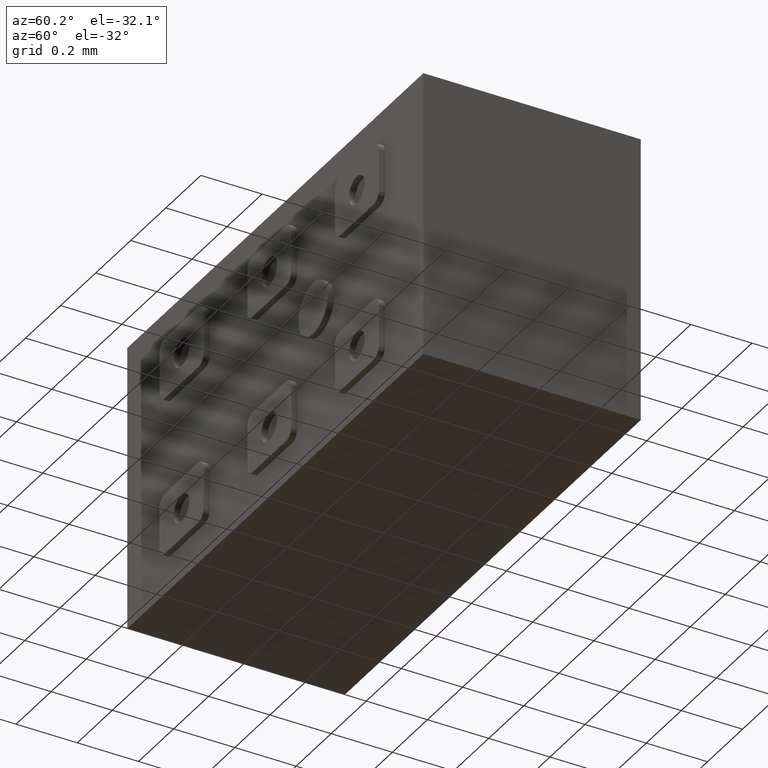
[diagram: clean part render]
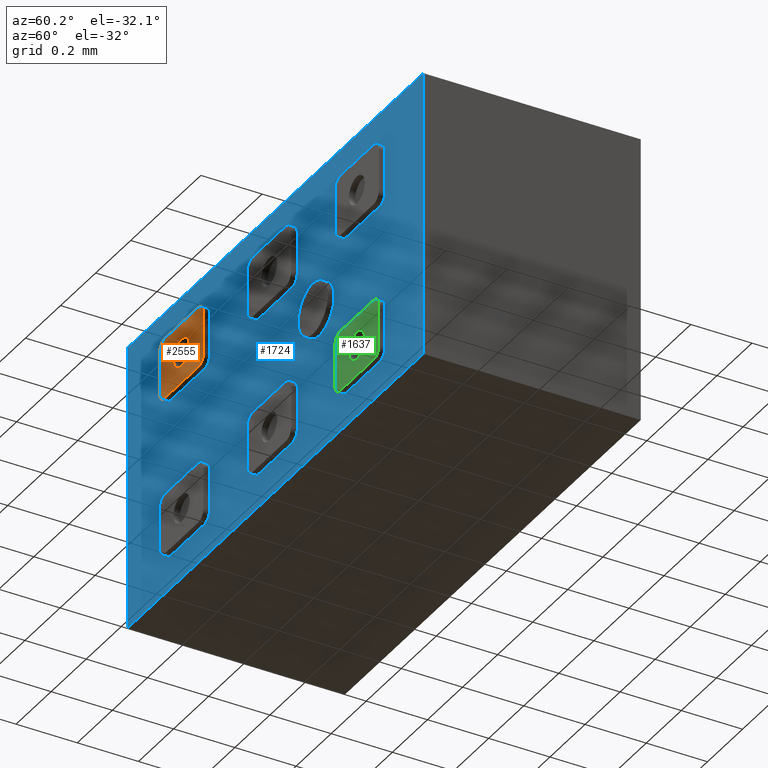
[diagram: same view with three faces highlighted in distinct colors, each labeled with its STEP entity id]
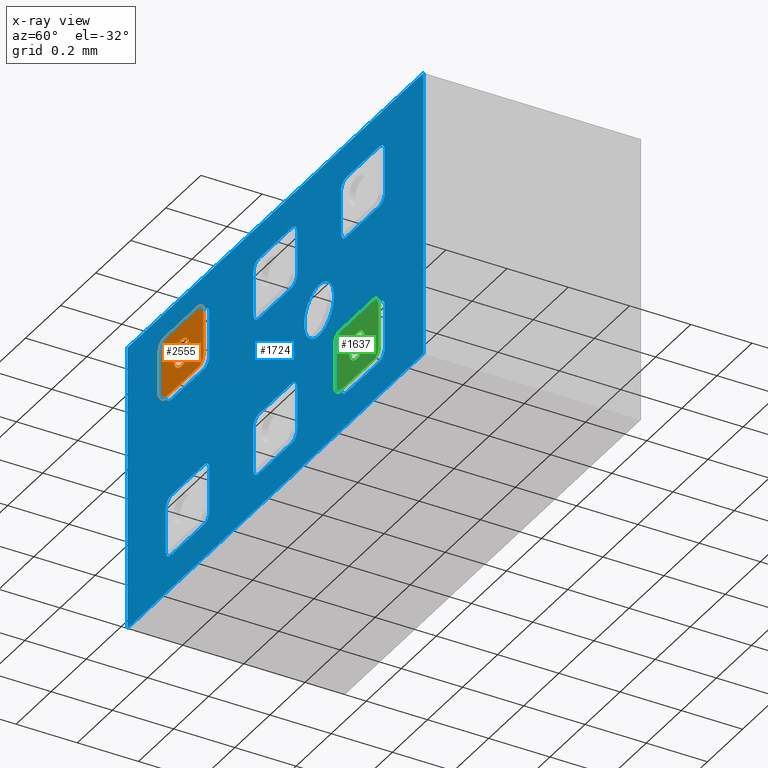
[diagram: x-ray of the same camera — body ghosted, the three highlighted faces saturated]
A machine part, auxiliary view with three faces highlighted in distinct colors.
The next image is the same camera in x-ray (body ghosted, the three faces saturated) — at least one of them is partly hidden behind the body in this view.
Their STEP definitions:

[orange] entity #2555 — the highlighted planar face has unit normal (0, 1, 0).
#21 = EDGE_CURVE ( 'NONE', #1549, #2287, #1374, .T. ) ;
#27 = CARTESIAN_POINT ( 'NONE',  ( -0.3749999999999998890, -0.3749999999999999445, 0.1900000000000070521 ) ) ;
#52 = CARTESIAN_POINT ( 'NONE',  ( -0.5950000000000000844, -0.3749999999999999445, 0.3300000000000071210 ) ) ;
#54 = CIRCLE ( 'NONE', #2496, 0.04500000000000001221 ) ;
#99 = FACE_OUTER_BOUND ( 'NONE', #1818, .T. ) ;
#100 = CIRCLE ( 'NONE', #2380, 0.04500000000000001221 ) ;
#121 = PLANE ( 'NONE',  #1906 ) ;
#122 = AXIS2_PLACEMENT_3D ( 'NONE', #52, #853, #627 ) ;
#163 = VECTOR ( 'NONE', #1788, 1000.000000000000000 ) ;
#180 = CIRCLE ( 'NONE', #2417, 0.02999999999999997113 ) ;
#267 = CARTESIAN_POINT ( 'NONE',  ( -0.6250000000000000000, -0.3749999999999999445, 0.3300000000000071210 ) ) ;
#304 = DIRECTION ( 'NONE',  ( 0.000000000000000000, 0.000000000000000000, -1.000000000000000000 ) ) ;
#321 = ORIENTED_EDGE ( 'NONE', *, *, #992, .F. ) ;
#375 = DIRECTION ( 'NONE',  ( 0.000000000000000000, 1.000000000000000000, 0.000000000000000000 ) ) ;
#390 = ORIENTED_EDGE ( 'NONE', *, *, #399, .F. ) ;
#399 = EDGE_CURVE ( 'NONE', #725, #1241, #832, .T. ) ;
#428 = LINE ( 'NONE', #827, #745 ) ;
#447 = ORIENTED_EDGE ( 'NONE', *, *, #1712, .T. ) ;
#478 = CARTESIAN_POINT ( 'NONE',  ( -0.3749999999999999445, -0.3749999999999999445, 0.1900000000000070521 ) ) ;
#481 = ORIENTED_EDGE ( 'NONE', *, *, #2243, .F. ) ;
#539 = DIRECTION ( 'NONE',  ( 0.000000000000000000, 0.000000000000000000, 1.000000000000000000 ) ) ;
#570 = EDGE_CURVE ( 'NONE', #1996, #1422, #2524, .T. ) ;
#627 = DIRECTION ( 'NONE',  ( 0.000000000000000000, 0.000000000000000000, 1.000000000000000000 ) ) ;
#725 = VERTEX_POINT ( 'NONE', #888 ) ;
#745 = VECTOR ( 'NONE', #2211, 1000.000000000000000 ) ;
#753 = CARTESIAN_POINT ( 'NONE',  ( -0.4049999999999999711, -0.3749999999999999445, 0.3300000000000071210 ) ) ;
#758 = EDGE_CURVE ( 'NONE', #1241, #1996, #869, .T. ) ;
#801 = DIRECTION ( 'NONE',  ( 1.000000000000000000, 0.000000000000000000, 0.000000000000000000 ) ) ;
#807 = DIRECTION ( 'NONE',  ( 0.000000000000000000, 1.000000000000000000, 0.000000000000000000 ) ) ;
#827 = CARTESIAN_POINT ( 'NONE',  ( -0.6250000000000000000, -0.3749999999999999445, 0.1900000000000070521 ) ) ;
#832 = CIRCLE ( 'NONE', #2105, 0.03000000000000002318 ) ;
#838 = VECTOR ( 'NONE', #1621, 1000.000000000000000 ) ;
#844 = CARTESIAN_POINT ( 'NONE',  ( -0.6250000000000000000, -0.3749999999999999445, 0.1900000000000070521 ) ) ;
#853 = DIRECTION ( 'NONE',  ( 0.000000000000000000, 1.000000000000000000, 0.000000000000000000 ) ) ;
#869 = LINE ( 'NONE', #27, #838 ) ;
#886 = AXIS2_PLACEMENT_3D ( 'NONE', #2186, #375, #1804 ) ;
#888 = CARTESIAN_POINT ( 'NONE',  ( -0.4049999999999999711, -0.3749999999999999445, 0.3600000000000071476 ) ) ;
#932 = ORIENTED_EDGE ( 'NONE', *, *, #758, .F. ) ;
#992 = EDGE_CURVE ( 'NONE', #2287, #725, #1246, .T. ) ;
#1032 = DIRECTION ( 'NONE',  ( 0.000000000000000000, 0.000000000000000000, 1.000000000000000000 ) ) ;
#1111 = CARTESIAN_POINT ( 'NONE',  ( -0.5950000000000000844, -0.3749999999999999445, 0.1900000000000070521 ) ) ;
#1139 = CARTESIAN_POINT ( 'NONE',  ( -0.3749999999999998890, -0.3749999999999999445, 0.3300000000000071210 ) ) ;
#1151 = VERTEX_POINT ( 'NONE', #1476 ) ;
#1201 = LINE ( 'NONE', #1938, #163 ) ;
#1228 = CARTESIAN_POINT ( 'NONE',  ( -0.5000000000000000000, -0.3749999999999999445, 0.2600000000000070033 ) ) ;
#1241 = VERTEX_POINT ( 'NONE', #1139 ) ;
#1246 = LINE ( 'NONE', #2007, #2233 ) ;
#1342 = CARTESIAN_POINT ( 'NONE',  ( -0.5000000000000000000, -0.3749999999999999445, 0.2600000000000070033 ) ) ;
#1374 = CIRCLE ( 'NONE', #122, 0.02999999999999997113 ) ;
#1392 = CARTESIAN_POINT ( 'NONE',  ( -0.5950000000000000844, -0.3749999999999999445, 0.3600000000000070921 ) ) ;
#1422 = VERTEX_POINT ( 'NONE', #1766 ) ;
#1476 = CARTESIAN_POINT ( 'NONE',  ( -0.5000000000000000000, -0.3749999999999999445, 0.2150000000000070466 ) ) ;
#1492 = DIRECTION ( 'NONE',  ( 0.000000000000000000, 1.000000000000000000, -0.000000000000000000 ) ) ;
#1523 = ORIENTED_EDGE ( 'NONE', *, *, #570, .F. ) ;
#1549 = VERTEX_POINT ( 'NONE', #267 ) ;
#1601 = ORIENTED_EDGE ( 'NONE', *, *, #1981, .F. ) ;
#1621 = DIRECTION ( 'NONE',  ( -0.000000000000000000, -0.000000000000000000, -1.000000000000000000 ) ) ;
#1649 = EDGE_LOOP ( 'NONE', ( #447, #2549 ) ) ;
#1690 = DIRECTION ( 'NONE',  ( 0.000000000000000000, -0.000000000000000000, 1.000000000000000000 ) ) ;
#1694 = VERTEX_POINT ( 'NONE', #2135 ) ;
#1712 = EDGE_CURVE ( 'NONE', #1832, #1151, #54, .T. ) ;
#1766 = CARTESIAN_POINT ( 'NONE',  ( -0.4049999999999999711, -0.3749999999999999445, 0.1600000000000070810 ) ) ;
#1788 = DIRECTION ( 'NONE',  ( -1.000000000000000000, -0.000000000000000000, -0.000000000000000000 ) ) ;
#1789 = EDGE_CURVE ( 'NONE', #1151, #1832, #100, .T. ) ;
#1804 = DIRECTION ( 'NONE',  ( 0.000000000000000000, 0.000000000000000000, 1.000000000000000000 ) ) ;
#1818 = EDGE_LOOP ( 'NONE', ( #1601, #481, #1523, #932, #390, #321, #2120, #1845 ) ) ;
#1832 = VERTEX_POINT ( 'NONE', #2013 ) ;
#1845 = ORIENTED_EDGE ( 'NONE', *, *, #2500, .F. ) ;
#1900 = FACE_BOUND ( 'NONE', #1649, .T. ) ;
#1906 = AXIS2_PLACEMENT_3D ( 'NONE', #1111, #2466, #1690 ) ;
#1938 = CARTESIAN_POINT ( 'NONE',  ( -0.5950000000000000844, -0.3749999999999999445, 0.1600000000000070810 ) ) ;
#1981 = EDGE_CURVE ( 'NONE', #1694, #2510, #180, .T. ) ;
#1996 = VERTEX_POINT ( 'NONE', #478 ) ;
#2007 = CARTESIAN_POINT ( 'NONE',  ( -0.5950000000000000844, -0.3749999999999999445, 0.3600000000000070921 ) ) ;
#2013 = CARTESIAN_POINT ( 'NONE',  ( -0.5000000000000000000, -0.3749999999999999445, 0.3050000000000070433 ) ) ;
#2105 = AXIS2_PLACEMENT_3D ( 'NONE', #753, #1492, #304 ) ;
#2120 = ORIENTED_EDGE ( 'NONE', *, *, #21, .F. ) ;
#2135 = CARTESIAN_POINT ( 'NONE',  ( -0.5950000000000000844, -0.3749999999999999445, 0.1600000000000070810 ) ) ;
#2186 = CARTESIAN_POINT ( 'NONE',  ( -0.4049999999999999711, -0.3749999999999999445, 0.1900000000000070521 ) ) ;
#2201 = DIRECTION ( 'NONE',  ( 0.000000000000000000, 0.000000000000000000, 1.000000000000000000 ) ) ;
#2211 = DIRECTION ( 'NONE',  ( 0.000000000000000000, 0.000000000000000000, 1.000000000000000000 ) ) ;
#2214 = CARTESIAN_POINT ( 'NONE',  ( -0.5950000000000000844, -0.3749999999999999445, 0.1900000000000070521 ) ) ;
#2233 = VECTOR ( 'NONE', #801, 1000.000000000000000 ) ;
#2243 = EDGE_CURVE ( 'NONE', #1422, #1694, #1201, .T. ) ;
#2287 = VERTEX_POINT ( 'NONE', #1392 ) ;
#2320 = DIRECTION ( 'NONE',  ( 0.000000000000000000, 1.000000000000000000, 0.000000000000000000 ) ) ;
#2380 = AXIS2_PLACEMENT_3D ( 'NONE', #1228, #807, #2201 ) ;
#2417 = AXIS2_PLACEMENT_3D ( 'NONE', #2214, #2430, #1032 ) ;
#2430 = DIRECTION ( 'NONE',  ( 0.000000000000000000, 1.000000000000000000, 0.000000000000000000 ) ) ;
#2466 = DIRECTION ( 'NONE',  ( 0.000000000000000000, 1.000000000000000000, 0.000000000000000000 ) ) ;
#2496 = AXIS2_PLACEMENT_3D ( 'NONE', #1342, #2320, #539 ) ;
#2500 = EDGE_CURVE ( 'NONE', #2510, #1549, #428, .T. ) ;
#2510 = VERTEX_POINT ( 'NONE', #844 ) ;
#2524 = CIRCLE ( 'NONE', #886, 0.03000000000000002318 ) ;
#2549 = ORIENTED_EDGE ( 'NONE', *, *, #1789, .T. ) ;
#2555 = ADVANCED_FACE ( 'NONE', ( #1900, #99 ), #121, .F. ) ;

[blue] entity #1724 — the highlighted planar face has unit normal (0, 1, 0).
#4 = CARTESIAN_POINT ( 'NONE',  ( 0.8445000000000000284, -0.3549999999999999822, 0.4694999999999998064 ) ) ;
#5 = DIRECTION ( 'NONE',  ( 0.000000000000000000, 0.000000000000000000, 1.000000000000000000 ) ) ;
#7 = ORIENTED_EDGE ( 'NONE', *, *, #424, .T. ) ;
#8 = VERTEX_POINT ( 'NONE', #2229 ) ;
#16 = LINE ( 'NONE', #1156, #381 ) ;
#18 = ORIENTED_EDGE ( 'NONE', *, *, #2028, .T. ) ;
#20 = CARTESIAN_POINT ( 'NONE',  ( -0.4049999999999999711, -0.3549999999999999822, 0.3600000000000071476 ) ) ;
#25 = ORIENTED_EDGE ( 'NONE', *, *, #1070, .T. ) ;
#26 = LINE ( 'NONE', #476, #1414 ) ;
#33 = CIRCLE ( 'NONE', #1250, 0.03000000000000002318 ) ;
#39 = CIRCLE ( 'NONE', #1211, 0.03000000000000002318 ) ;
#42 = CARTESIAN_POINT ( 'NONE',  ( -0.5950000000000000844, -0.3549999999999999822, -0.1899999999999930078 ) ) ;
#44 = DIRECTION ( 'NONE',  ( 0.000000000000000000, 0.000000000000000000, 1.000000000000000000 ) ) ;
#56 = AXIS2_PLACEMENT_3D ( 'NONE', #1300, #697, #299 ) ;
#64 = ORIENTED_EDGE ( 'NONE', *, *, #2283, .T. ) ;
#68 = CARTESIAN_POINT ( 'NONE',  ( 0.09500000000000002887, -0.3549999999999999822, -0.1599999999999964506 ) ) ;
#89 = LINE ( 'NONE', #1075, #2210 ) ;
#92 = DIRECTION ( 'NONE',  ( 0.000000000000000000, 0.000000000000000000, 1.000000000000000000 ) ) ;
#94 = DIRECTION ( 'NONE',  ( 0.000000000000000000, 0.000000000000000000, 1.000000000000000000 ) ) ;
#95 = CARTESIAN_POINT ( 'NONE',  ( 0.1250000000000001110, -0.3549999999999999822, 0.3300000000000035683 ) ) ;
#96 = EDGE_CURVE ( 'NONE', #851, #1087, #1283, .T. ) ;
#102 = CIRCLE ( 'NONE', #56, 0.03000000000000002318 ) ;
#104 = EDGE_LOOP ( 'NONE', ( #1777, #1050, #18, #1155, #813, #2556, #1387, #1196 ) ) ;
#117 = EDGE_CURVE ( 'NONE', #1760, #2366, #2256, .T. ) ;
#118 = CARTESIAN_POINT ( 'NONE',  ( 0.09500000000000002887, -0.3549999999999999822, -0.3599999999999964895 ) ) ;
#127 = EDGE_CURVE ( 'NONE', #1461, #1200, #484, .T. ) ;
#129 = VECTOR ( 'NONE', #2062, 1000.000000000000000 ) ;
#130 = VERTEX_POINT ( 'NONE', #118 ) ;
#135 = ORIENTED_EDGE ( 'NONE', *, *, #1029, .T. ) ;
#138 = CARTESIAN_POINT ( 'NONE',  ( -0.1250000000000000000, -0.3549999999999999822, 0.3300000000000035683 ) ) ;
#142 = VERTEX_POINT ( 'NONE', #1654 ) ;
#145 = CARTESIAN_POINT ( 'NONE',  ( -0.5950000000000000844, -0.3549999999999999822, -0.1599999999999930367 ) ) ;
#147 = VERTEX_POINT ( 'NONE', #1307 ) ;
#148 = CARTESIAN_POINT ( 'NONE',  ( -0.5950000000000000844, -0.3549999999999999822, 0.3300000000000071210 ) ) ;
#150 = EDGE_CURVE ( 'NONE', #1301, #1760, #1780, .T. ) ;
#165 = DIRECTION ( 'NONE',  ( 0.000000000000000000, -0.000000000000000000, 1.000000000000000000 ) ) ;
#167 = CARTESIAN_POINT ( 'NONE',  ( -0.09500000000000002887, -0.3549999999999999822, 0.1900000000000035272 ) ) ;
#174 = VERTEX_POINT ( 'NONE', #282 ) ;
#176 = VERTEX_POINT ( 'NONE', #1081 ) ;
#195 = CARTESIAN_POINT ( 'NONE',  ( -0.5950000000000000844, -0.3549999999999999822, -0.3599999999999930478 ) ) ;
#196 = CARTESIAN_POINT ( 'NONE',  ( -0.1250000000000000000, -0.3549999999999999822, 0.1900000000000035272 ) ) ;
#203 = LINE ( 'NONE', #1008, #1259 ) ;
#208 = EDGE_CURVE ( 'NONE', #542, #2104, #2473, .T. ) ;
#215 = AXIS2_PLACEMENT_3D ( 'NONE', #1251, #285, #1866 ) ;
#222 = EDGE_LOOP ( 'NONE', ( #300, #630, #1821, #1115, #1399, #461, #930, #815 ) ) ;
#224 = DIRECTION ( 'NONE',  ( 0.000000000000000000, 0.000000000000000000, -1.000000000000000000 ) ) ;
#241 = DIRECTION ( 'NONE',  ( -1.000000000000000000, -0.000000000000000000, -0.000000000000000000 ) ) ;
#248 = CARTESIAN_POINT ( 'NONE',  ( -0.6250000000000000000, -0.3549999999999999822, -0.3299999999999930766 ) ) ;
#251 = VECTOR ( 'NONE', #241, 1000.000000000000000 ) ;
#257 = EDGE_CURVE ( 'NONE', #1268, #851, #1293, .T. ) ;
#258 = CIRCLE ( 'NONE', #1704, 0.03000000000000002318 ) ;
#259 = VERTEX_POINT ( 'NONE', #1445 ) ;
#260 = EDGE_CURVE ( 'NONE', #147, #1268, #1640, .T. ) ;
#263 = DIRECTION ( 'NONE',  ( 0.000000000000000000, 1.000000000000000000, 0.000000000000000000 ) ) ;
#272 = VERTEX_POINT ( 'NONE', #1256 ) ;
#282 = CARTESIAN_POINT ( 'NONE',  ( 0.2500000000000000000, -0.3549999999999999822, -0.08500000000000003386 ) ) ;
#284 = DIRECTION ( 'NONE',  ( 1.000000000000000000, 0.000000000000000000, 0.000000000000000000 ) ) ;
#285 = DIRECTION ( 'NONE',  ( 0.000000000000000000, 1.000000000000000000, 0.000000000000000000 ) ) ;
#299 = DIRECTION ( 'NONE',  ( 0.000000000000000000, 0.000000000000000000, -1.000000000000000000 ) ) ;
#300 = ORIENTED_EDGE ( 'NONE', *, *, #1147, .T. ) ;
#306 = DIRECTION ( 'NONE',  ( 1.000000000000000000, 0.000000000000000000, 0.000000000000000000 ) ) ;
#309 = AXIS2_PLACEMENT_3D ( 'NONE', #778, #1571, #1855 ) ;
#316 = FACE_BOUND ( 'NONE', #2493, .T. ) ;
#329 = DIRECTION ( 'NONE',  ( -1.000000000000000000, -0.000000000000000000, -0.000000000000000000 ) ) ;
#343 = VERTEX_POINT ( 'NONE', #637 ) ;
#346 = DIRECTION ( 'NONE',  ( 1.000000000000000000, 0.000000000000000000, 0.000000000000000000 ) ) ;
#358 = VERTEX_POINT ( 'NONE', #2027 ) ;
#366 = VERTEX_POINT ( 'NONE', #916 ) ;
#378 = ORIENTED_EDGE ( 'NONE', *, *, #1369, .T. ) ;
#379 = DIRECTION ( 'NONE',  ( -1.000000000000000000, -0.000000000000000000, -0.000000000000000000 ) ) ;
#381 = VECTOR ( 'NONE', #1980, 1000.000000000000000 ) ;
#391 = VERTEX_POINT ( 'NONE', #138 ) ;
#394 = DIRECTION ( 'NONE',  ( 0.000000000000000000, 0.000000000000000000, 1.000000000000000000 ) ) ;
#402 = CARTESIAN_POINT ( 'NONE',  ( -0.4049999999999999711, -0.3549999999999999822, -0.3599999999999930478 ) ) ;
#408 = DIRECTION ( 'NONE',  ( 0.000000000000000000, 1.000000000000000000, -0.000000000000000000 ) ) ;
#411 = VERTEX_POINT ( 'NONE', #1341 ) ;
#424 = EDGE_CURVE ( 'NONE', #2158, #2178, #2121, .T. ) ;
#429 = LINE ( 'NONE', #1277, #129 ) ;
#430 = DIRECTION ( 'NONE',  ( -0.000000000000000000, -0.000000000000000000, -1.000000000000000000 ) ) ;
#431 = EDGE_CURVE ( 'NONE', #1200, #2158, #2274, .T. ) ;
#433 = LINE ( 'NONE', #1765, #1757 ) ;
#437 = DIRECTION ( 'NONE',  ( 0.000000000000000000, 0.000000000000000000, 1.000000000000000000 ) ) ;
#440 = LINE ( 'NONE', #2022, #251 ) ;
#461 = ORIENTED_EDGE ( 'NONE', *, *, #2078, .T. ) ;
#475 = LINE ( 'NONE', #855, #1161 ) ;
#476 = CARTESIAN_POINT ( 'NONE',  ( 0.4049999999999999711, -0.3549999999999999822, -0.1599999999999999756 ) ) ;
#484 = LINE ( 'NONE', #1680, #2033 ) ;
#488 = CARTESIAN_POINT ( 'NONE',  ( -0.3749999999999998890, -0.3549999999999999822, -0.3299999999999930766 ) ) ;
#494 = DIRECTION ( 'NONE',  ( -1.000000000000000000, -0.000000000000000000, -0.000000000000000000 ) ) ;
#504 = DIRECTION ( 'NONE',  ( 0.000000000000000000, 0.000000000000000000, 1.000000000000000000 ) ) ;
#506 = DIRECTION ( 'NONE',  ( 0.000000000000000000, 0.000000000000000000, 1.000000000000000000 ) ) ;
#513 = DIRECTION ( 'NONE',  ( 0.000000000000000000, 1.000000000000000000, 0.000000000000000000 ) ) ;
#520 = VERTEX_POINT ( 'NONE', #991 ) ;
#528 = VERTEX_POINT ( 'NONE', #1019 ) ;
#529 = DIRECTION ( 'NONE',  ( 0.000000000000000000, 0.000000000000000000, 1.000000000000000000 ) ) ;
#530 = EDGE_CURVE ( 'NONE', #259, #1279, #1174, .T. ) ;
#533 = AXIS2_PLACEMENT_3D ( 'NONE', #887, #1670, #2454 ) ;
#540 = AXIS2_PLACEMENT_3D ( 'NONE', #1556, #2134, #1761 ) ;
#542 = VERTEX_POINT ( 'NONE', #1954 ) ;
#543 = CARTESIAN_POINT ( 'NONE',  ( -0.1250000000000000000, -0.3549999999999999822, -0.1899999999999964773 ) ) ;
#545 = CARTESIAN_POINT ( 'NONE',  ( -0.09500000000000002887, -0.3549999999999999822, -0.1599999999999965061 ) ) ;
#547 = EDGE_CURVE ( 'NONE', #1559, #1928, #2239, .T. ) ;
#548 = EDGE_LOOP ( 'NONE', ( #1764, #994, #2053, #2035, #1675, #135, #2086, #831 ) ) ;
#550 = CARTESIAN_POINT ( 'NONE',  ( -0.09500000000000002887, -0.3549999999999999822, 0.3600000000000035394 ) ) ;
#552 = PLANE ( 'NONE',  #935 ) ;
#556 = CARTESIAN_POINT ( 'NONE',  ( 0.4049999999999999711, -0.3549999999999999822, 0.3600000000000000977 ) ) ;
#574 = DIRECTION ( 'NONE',  ( 0.000000000000000000, 0.000000000000000000, 1.000000000000000000 ) ) ;
#577 = AXIS2_PLACEMENT_3D ( 'NONE', #42, #1225, #1840 ) ;
#591 = LINE ( 'NONE', #1213, #748 ) ;
#596 = DIRECTION ( 'NONE',  ( 0.000000000000000000, 0.000000000000000000, 1.000000000000000000 ) ) ;
#602 = CARTESIAN_POINT ( 'NONE',  ( -0.5950000000000000844, -0.3549999999999999822, 0.1900000000000070521 ) ) ;
#605 = VERTEX_POINT ( 'NONE', #2355 ) ;
#617 = CARTESIAN_POINT ( 'NONE',  ( 0.4049999999999999711, -0.3549999999999999822, -0.1899999999999999467 ) ) ;
#618 = LINE ( 'NONE', #1558, #974 ) ;
#622 = VECTOR ( 'NONE', #1813, 1000.000000000000000 ) ;
#625 = CARTESIAN_POINT ( 'NONE',  ( -0.6250000000000000000, -0.3549999999999999822, 0.1900000000000070521 ) ) ;
#626 = EDGE_CURVE ( 'NONE', #1133, #2459, #16, .T. ) ;
#630 = ORIENTED_EDGE ( 'NONE', *, *, #2167, .T. ) ;
#632 = EDGE_CURVE ( 'NONE', #1472, #391, #203, .T. ) ;
#634 = CARTESIAN_POINT ( 'NONE',  ( -0.3749999999999998890, -0.3549999999999999822, -0.1899999999999930078 ) ) ;
#637 = CARTESIAN_POINT ( 'NONE',  ( 0.6250000000000001110, -0.3549999999999999822, -0.1899999999999999467 ) ) ;
#643 = AXIS2_PLACEMENT_3D ( 'NONE', #2339, #2455, #529 ) ;
#652 = EDGE_CURVE ( 'NONE', #411, #1544, #755, .T. ) ;
#661 = ORIENTED_EDGE ( 'NONE', *, *, #150, .T. ) ;
#665 = CIRCLE ( 'NONE', #957, 0.08500000000000003386 ) ;
#669 = DIRECTION ( 'NONE',  ( 0.000000000000000000, 0.000000000000000000, 1.000000000000000000 ) ) ;
#670 = CARTESIAN_POINT ( 'NONE',  ( 0.4049999999999999711, -0.3549999999999999822, 0.3600000000000000977 ) ) ;
#675 = CARTESIAN_POINT ( 'NONE',  ( 0.6250000000000001110, -0.3549999999999999822, -0.3300000000000000155 ) ) ;
#696 = EDGE_CURVE ( 'NONE', #752, #2119, #258, .T. ) ;
#697 = DIRECTION ( 'NONE',  ( 0.000000000000000000, 1.000000000000000000, -0.000000000000000000 ) ) ;
#701 = CARTESIAN_POINT ( 'NONE',  ( 0.4049999999999999711, -0.3549999999999999822, 0.1600000000000000866 ) ) ;
#704 = VECTOR ( 'NONE', #2285, 1000.000000000000000 ) ;
#707 = CIRCLE ( 'NONE', #882, 0.03000000000000002318 ) ;
#710 = VECTOR ( 'NONE', #1347, 1000.000000000000000 ) ;
#712 = EDGE_CURVE ( 'NONE', #358, #142, #429, .T. ) ;
#715 = CARTESIAN_POINT ( 'NONE',  ( -0.4049999999999999711, -0.3549999999999999822, 0.1600000000000070810 ) ) ;
#726 = ORIENTED_EDGE ( 'NONE', *, *, #1851, .T. ) ;
#729 = EDGE_CURVE ( 'NONE', #605, #1339, #1337, .T. ) ;
#736 = ORIENTED_EDGE ( 'NONE', *, *, #208, .F. ) ;
#746 = VECTOR ( 'NONE', #494, 1000.000000000000000 ) ;
#747 = AXIS2_PLACEMENT_3D ( 'NONE', #2452, #910, #1689 ) ;
#748 = VECTOR ( 'NONE', #2142, 1000.000000000000000 ) ;
#752 = VERTEX_POINT ( 'NONE', #2048 ) ;
#754 = FACE_BOUND ( 'NONE', #802, .T. ) ;
#755 = CIRCLE ( 'NONE', #215, 0.02999999999999997113 ) ;
#760 = LINE ( 'NONE', #488, #710 ) ;
#769 = DIRECTION ( 'NONE',  ( 0.000000000000000000, 0.000000000000000000, 1.000000000000000000 ) ) ;
#775 = CARTESIAN_POINT ( 'NONE',  ( 0.4049999999999999711, -0.3549999999999999822, 0.1900000000000000577 ) ) ;
#778 = CARTESIAN_POINT ( 'NONE',  ( 0.4049999999999999711, -0.3549999999999999822, 0.3300000000000001266 ) ) ;
#785 = DIRECTION ( 'NONE',  ( 0.000000000000000000, 1.000000000000000000, 0.000000000000000000 ) ) ;
#790 = CARTESIAN_POINT ( 'NONE',  ( 0.1250000000000000555, -0.3549999999999999822, -0.3299999999999965183 ) ) ;
#797 = CARTESIAN_POINT ( 'NONE',  ( -0.8445000000000000284, -0.3549999999999999822, 0.4695000000000000284 ) ) ;
#802 = EDGE_LOOP ( 'NONE', ( #1076, #2198, #25, #808, #1721, #1343, #1630, #2374 ) ) ;
#803 = EDGE_CURVE ( 'NONE', #1928, #821, #760, .T. ) ;
#808 = ORIENTED_EDGE ( 'NONE', *, *, #729, .T. ) ;
#813 = ORIENTED_EDGE ( 'NONE', *, *, #885, .T. ) ;
#814 = EDGE_CURVE ( 'NONE', #391, #259, #2015, .T. ) ;
#815 = ORIENTED_EDGE ( 'NONE', *, *, #1170, .T. ) ;
#816 = DIRECTION ( 'NONE',  ( 0.000000000000000000, 0.000000000000000000, 1.000000000000000000 ) ) ;
#821 = VERTEX_POINT ( 'NONE', #2156 ) ;
#831 = ORIENTED_EDGE ( 'NONE', *, *, #1386, .T. ) ;
#834 = CIRCLE ( 'NONE', #1826, 0.02999999999999997113 ) ;
#846 = CARTESIAN_POINT ( 'NONE',  ( -0.09500000000000002887, -0.3549999999999999822, -0.3299999999999965183 ) ) ;
#851 = VERTEX_POINT ( 'NONE', #545 ) ;
#855 = CARTESIAN_POINT ( 'NONE',  ( -0.09500000000000002887, -0.3549999999999999822, 0.1600000000000035560 ) ) ;
#856 = CIRCLE ( 'NONE', #1963, 0.02999999999999997113 ) ;
#880 = CIRCLE ( 'NONE', #533, 0.08500000000000003386 ) ;
#882 = AXIS2_PLACEMENT_3D ( 'NONE', #2379, #1812, #437 ) ;
#885 = EDGE_CURVE ( 'NONE', #2548, #1559, #1318, .T. ) ;
#887 = CARTESIAN_POINT ( 'NONE',  ( 0.2500000000000000000, -0.3549999999999999822, 0.000000000000000000 ) ) ;
#893 = VERTEX_POINT ( 'NONE', #556 ) ;
#906 = EDGE_LOOP ( 'NONE', ( #1288, #1216, #2141, #1159, #7, #378, #2309, #661 ) ) ;
#910 = DIRECTION ( 'NONE',  ( 0.000000000000000000, 1.000000000000000000, 0.000000000000000000 ) ) ;
#916 = CARTESIAN_POINT ( 'NONE',  ( 0.3750000000000000000, -0.3549999999999999822, -0.3300000000000000155 ) ) ;
#921 = CIRCLE ( 'NONE', #2565, 0.03000000000000002318 ) ;
#930 = ORIENTED_EDGE ( 'NONE', *, *, #626, .T. ) ;
#931 = CARTESIAN_POINT ( 'NONE',  ( -0.6250000000000000000, -0.3549999999999999822, 0.3300000000000071210 ) ) ;
#935 = AXIS2_PLACEMENT_3D ( 'NONE', #1354, #513, #165 ) ;
#936 = VECTOR ( 'NONE', #379, 1000.000000000000000 ) ;
#957 = AXIS2_PLACEMENT_3D ( 'NONE', #1985, #2413, #394 ) ;
#962 = DIRECTION ( 'NONE',  ( 0.000000000000000000, 1.000000000000000000, 0.000000000000000000 ) ) ;
#963 = EDGE_CURVE ( 'NONE', #2366, #1461, #1995, .T. ) ;
#969 = CARTESIAN_POINT ( 'NONE',  ( 0.6250000000000001110, -0.3549999999999999822, 0.3300000000000001266 ) ) ;
#973 = VERTEX_POINT ( 'NONE', #2568 ) ;
#974 = VECTOR ( 'NONE', #430, 1000.000000000000000 ) ;
#983 = CARTESIAN_POINT ( 'NONE',  ( -0.5950000000000000844, -0.3549999999999999822, 0.3600000000000070921 ) ) ;
#985 = EDGE_LOOP ( 'NONE', ( #736, #1383, #2445, #1573 ) ) ;
#991 = CARTESIAN_POINT ( 'NONE',  ( -0.09500000000000002887, -0.3549999999999999822, 0.1600000000000035560 ) ) ;
#994 = ORIENTED_EDGE ( 'NONE', *, *, #1993, .T. ) ;
#1003 = CIRCLE ( 'NONE', #2401, 0.03000000000000002318 ) ;
#1006 = LINE ( 'NONE', #4, #2154 ) ;
#1008 = CARTESIAN_POINT ( 'NONE',  ( -0.1250000000000000000, -0.3549999999999999822, 0.1900000000000035272 ) ) ;
#1011 = VERTEX_POINT ( 'NONE', #1197 ) ;
#1019 = CARTESIAN_POINT ( 'NONE',  ( -0.09500000000000002887, -0.3549999999999999822, -0.3599999999999964895 ) ) ;
#1020 = CARTESIAN_POINT ( 'NONE',  ( 0.5950000000000000844, -0.3549999999999999822, -0.3599999999999999867 ) ) ;
#1027 = VERTEX_POINT ( 'NONE', #1591 ) ;
#1028 = DIRECTION ( 'NONE',  ( 0.000000000000000000, 0.000000000000000000, -1.000000000000000000 ) ) ;
#1029 = EDGE_CURVE ( 'NONE', #1087, #1150, #921, .T. ) ;
#1030 = CARTESIAN_POINT ( 'NONE',  ( 0.8445000000000000284, -0.3549999999999999822, -0.4695000000000002505 ) ) ;
#1031 = CARTESIAN_POINT ( 'NONE',  ( 0.5950000000000000844, -0.3549999999999999822, 0.3300000000000001266 ) ) ;
#1035 = EDGE_CURVE ( 'NONE', #2016, #1817, #707, .T. ) ;
#1037 = ORIENTED_EDGE ( 'NONE', *, *, #2203, .T. ) ;
#1050 = ORIENTED_EDGE ( 'NONE', *, *, #652, .T. ) ;
#1070 = EDGE_CURVE ( 'NONE', #366, #605, #1208, .T. ) ;
#1075 = CARTESIAN_POINT ( 'NONE',  ( -0.6250000000000000000, -0.3549999999999999822, -0.3299999999999930766 ) ) ;
#1076 = ORIENTED_EDGE ( 'NONE', *, *, #2290, .T. ) ;
#1081 = CARTESIAN_POINT ( 'NONE',  ( 0.2500000000000000000, -0.3549999999999999822, 0.08500000000000003386 ) ) ;
#1087 = VERTEX_POINT ( 'NONE', #68 ) ;
#1089 = VECTOR ( 'NONE', #329, 1000.000000000000000 ) ;
#1090 = DIRECTION ( 'NONE',  ( 0.000000000000000000, 0.000000000000000000, 1.000000000000000000 ) ) ;
#1092 = CARTESIAN_POINT ( 'NONE',  ( -0.4049999999999999711, -0.3549999999999999822, -0.1599999999999929812 ) ) ;
#1115 = ORIENTED_EDGE ( 'NONE', *, *, #814, .T. ) ;
#1119 = CARTESIAN_POINT ( 'NONE',  ( -0.8445000000000000284, -0.3549999999999999822, 0.4695000000000000284 ) ) ;
#1127 = EDGE_CURVE ( 'NONE', #1402, #973, #2479, .T. ) ;
#1128 = ORIENTED_EDGE ( 'NONE', *, *, #2475, .F. ) ;
#1133 = VERTEX_POINT ( 'NONE', #95 ) ;
#1144 = ORIENTED_EDGE ( 'NONE', *, *, #1901, .T. ) ;
#1147 = EDGE_CURVE ( 'NONE', #2458, #520, #475, .T. ) ;
#1149 = CARTESIAN_POINT ( 'NONE',  ( -0.3749999999999998890, -0.3549999999999999822, 0.1900000000000070521 ) ) ;
#1150 = VERTEX_POINT ( 'NONE', #1308 ) ;
#1155 = ORIENTED_EDGE ( 'NONE', *, *, #2365, .T. ) ;
#1156 = CARTESIAN_POINT ( 'NONE',  ( 0.1250000000000001110, -0.3549999999999999822, 0.1900000000000035272 ) ) ;
#1157 = FACE_BOUND ( 'NONE', #222, .T. ) ;
#1159 = ORIENTED_EDGE ( 'NONE', *, *, #431, .T. ) ;
#1161 = VECTOR ( 'NONE', #1274, 1000.000000000000000 ) ;
#1170 = EDGE_CURVE ( 'NONE', #2459, #2458, #1210, .T. ) ;
#1174 = LINE ( 'NONE', #550, #1221 ) ;
#1180 = EDGE_CURVE ( 'NONE', #893, #752, #2045, .T. ) ;
#1194 = DIRECTION ( 'NONE',  ( 0.000000000000000000, 0.000000000000000000, -1.000000000000000000 ) ) ;
#1196 = ORIENTED_EDGE ( 'NONE', *, *, #2324, .T. ) ;
#1197 = CARTESIAN_POINT ( 'NONE',  ( -0.3749999999999998890, -0.3549999999999999822, 0.3300000000000071210 ) ) ;
#1200 = VERTEX_POINT ( 'NONE', #931 ) ;
#1208 = LINE ( 'NONE', #1991, #2363 ) ;
#1210 = CIRCLE ( 'NONE', #747, 0.03000000000000002318 ) ;
#1211 = AXIS2_PLACEMENT_3D ( 'NONE', #2529, #1979, #574 ) ;
#1213 = CARTESIAN_POINT ( 'NONE',  ( 0.4049999999999999711, -0.3549999999999999822, -0.3599999999999999867 ) ) ;
#1216 = ORIENTED_EDGE ( 'NONE', *, *, #963, .T. ) ;
#1217 = EDGE_CURVE ( 'NONE', #343, #2016, #1714, .T. ) ;
#1221 = VECTOR ( 'NONE', #1405, 1000.000000000000000 ) ;
#1225 = DIRECTION ( 'NONE',  ( 0.000000000000000000, 1.000000000000000000, 0.000000000000000000 ) ) ;
#1239 = DIRECTION ( 'NONE',  ( 0.000000000000000000, 1.000000000000000000, 0.000000000000000000 ) ) ;
#1250 = AXIS2_PLACEMENT_3D ( 'NONE', #1625, #1368, #1194 ) ;
#1251 = CARTESIAN_POINT ( 'NONE',  ( -0.5950000000000000844, -0.3549999999999999822, -0.3299999999999930766 ) ) ;
#1256 = CARTESIAN_POINT ( 'NONE',  ( 0.3750000000000000000, -0.3549999999999999822, 0.1900000000000000577 ) ) ;
#1259 = VECTOR ( 'NONE', #5, 1000.000000000000000 ) ;
#1268 = VERTEX_POINT ( 'NONE', #543 ) ;
#1271 = VECTOR ( 'NONE', #1762, 1000.000000000000000 ) ;
#1274 = DIRECTION ( 'NONE',  ( -1.000000000000000000, -0.000000000000000000, -0.000000000000000000 ) ) ;
#1277 = CARTESIAN_POINT ( 'NONE',  ( 0.8445000000000000284, -0.3549999999999999822, 0.4694999999999998064 ) ) ;
#1279 = VERTEX_POINT ( 'NONE', #2537 ) ;
#1283 = LINE ( 'NONE', #2057, #1415 ) ;
#1288 = ORIENTED_EDGE ( 'NONE', *, *, #117, .T. ) ;
#1293 = CIRCLE ( 'NONE', #1531, 0.02999999999999997113 ) ;
#1296 = EDGE_CURVE ( 'NONE', #1011, #1301, #1933, .T. ) ;
#1300 = CARTESIAN_POINT ( 'NONE',  ( 0.09500000000000002887, -0.3549999999999999822, 0.3300000000000035683 ) ) ;
#1301 = VERTEX_POINT ( 'NONE', #2336 ) ;
#1307 = CARTESIAN_POINT ( 'NONE',  ( -0.1250000000000000000, -0.3549999999999999822, -0.3299999999999965183 ) ) ;
#1308 = CARTESIAN_POINT ( 'NONE',  ( 0.1250000000000001110, -0.3549999999999999822, -0.1899999999999964773 ) ) ;
#1314 = CARTESIAN_POINT ( 'NONE',  ( -0.5950000000000000844, -0.3549999999999999822, 0.3600000000000070921 ) ) ;
#1318 = LINE ( 'NONE', #145, #2267 ) ;
#1321 = ORIENTED_EDGE ( 'NONE', *, *, #1127, .T. ) ;
#1337 = CIRCLE ( 'NONE', #1667, 0.02999999999999997113 ) ;
#1339 = VERTEX_POINT ( 'NONE', #1922 ) ;
#1341 = CARTESIAN_POINT ( 'NONE',  ( -0.5950000000000000844, -0.3549999999999999822, -0.3599999999999930478 ) ) ;
#1343 = ORIENTED_EDGE ( 'NONE', *, *, #1380, .T. ) ;
#1347 = DIRECTION ( 'NONE',  ( -0.000000000000000000, -0.000000000000000000, -1.000000000000000000 ) ) ;
#1354 = CARTESIAN_POINT ( 'NONE',  ( 0.000000000000000000, -0.3549999999999999822, 0.000000000000000000 ) ) ;
#1360 = ORIENTED_EDGE ( 'NONE', *, *, #1365, .F. ) ;
#1365 = EDGE_CURVE ( 'NONE', #176, #174, #665, .T. ) ;
#1368 = DIRECTION ( 'NONE',  ( 0.000000000000000000, 1.000000000000000000, -0.000000000000000000 ) ) ;
#1369 = EDGE_CURVE ( 'NONE', #2178, #1011, #33, .T. ) ;
#1380 = EDGE_CURVE ( 'NONE', #8, #343, #1003, .T. ) ;
#1383 = ORIENTED_EDGE ( 'NONE', *, *, #2453, .F. ) ;
#1386 = EDGE_CURVE ( 'NONE', #2322, #130, #1416, .T. ) ;
#1387 = ORIENTED_EDGE ( 'NONE', *, *, #803, .T. ) ;
#1391 = AXIS2_PLACEMENT_3D ( 'NONE', #1493, #2282, #504 ) ;
#1399 = ORIENTED_EDGE ( 'NONE', *, *, #530, .T. ) ;
#1402 = VERTEX_POINT ( 'NONE', #1958 ) ;
#1405 = DIRECTION ( 'NONE',  ( 1.000000000000000000, 0.000000000000000000, 0.000000000000000000 ) ) ;
#1414 = VECTOR ( 'NONE', #284, 1000.000000000000000 ) ;
#1415 = VECTOR ( 'NONE', #306, 1000.000000000000000 ) ;
#1416 = CIRCLE ( 'NONE', #2477, 0.03000000000000002318 ) ;
#1424 = CARTESIAN_POINT ( 'NONE',  ( 0.5950000000000000844, -0.3549999999999999822, -0.1899999999999999467 ) ) ;
#1441 = DIRECTION ( 'NONE',  ( 0.000000000000000000, 1.000000000000000000, -0.000000000000000000 ) ) ;
#1445 = CARTESIAN_POINT ( 'NONE',  ( -0.09500000000000002887, -0.3549999999999999822, 0.3600000000000035394 ) ) ;
#1461 = VERTEX_POINT ( 'NONE', #625 ) ;
#1472 = VERTEX_POINT ( 'NONE', #196 ) ;
#1493 = CARTESIAN_POINT ( 'NONE',  ( 0.4049999999999999711, -0.3549999999999999822, -0.3300000000000000155 ) ) ;
#1494 = AXIS2_PLACEMENT_3D ( 'NONE', #148, #1919, #1686 ) ;
#1496 = CIRCLE ( 'NONE', #577, 0.02999999999999997113 ) ;
#1497 = DIRECTION ( 'NONE',  ( -0.000000000000000000, -0.000000000000000000, 1.000000000000000000 ) ) ;
#1531 = AXIS2_PLACEMENT_3D ( 'NONE', #2066, #1664, #1090 ) ;
#1542 = FACE_BOUND ( 'NONE', #548, .T. ) ;
#1544 = VERTEX_POINT ( 'NONE', #248 ) ;
#1556 = CARTESIAN_POINT ( 'NONE',  ( -0.4049999999999999711, -0.3549999999999999822, -0.1899999999999930078 ) ) ;
#1558 = CARTESIAN_POINT ( 'NONE',  ( 0.6250000000000001110, -0.3549999999999999822, 0.1900000000000000577 ) ) ;
#1559 = VERTEX_POINT ( 'NONE', #1092 ) ;
#1564 = DIRECTION ( 'NONE',  ( 1.000000000000000000, 0.000000000000000000, 0.000000000000000000 ) ) ;
#1571 = DIRECTION ( 'NONE',  ( 0.000000000000000000, 1.000000000000000000, 0.000000000000000000 ) ) ;
#1573 = ORIENTED_EDGE ( 'NONE', *, *, #2329, .F. ) ;
#1576 = DIRECTION ( 'NONE',  ( 0.000000000000000000, 1.000000000000000000, -0.000000000000000000 ) ) ;
#1577 = AXIS2_PLACEMENT_3D ( 'NONE', #1877, #2080, #94 ) ;
#1591 = CARTESIAN_POINT ( 'NONE',  ( -0.6250000000000000000, -0.3549999999999999822, -0.1899999999999930078 ) ) ;
#1595 = DIRECTION ( 'NONE',  ( 1.000000000000000000, -0.000000000000000000, -1.283839162209004620E-16 ) ) ;
#1600 = DIRECTION ( 'NONE',  ( 0.000000000000000000, 1.000000000000000000, 0.000000000000000000 ) ) ;
#1616 = VECTOR ( 'NONE', #346, 1000.000000000000000 ) ;
#1625 = CARTESIAN_POINT ( 'NONE',  ( -0.4049999999999999711, -0.3549999999999999822, 0.3300000000000071210 ) ) ;
#1629 = DIRECTION ( 'NONE',  ( 0.000000000000000000, 0.000000000000000000, 1.000000000000000000 ) ) ;
#1630 = ORIENTED_EDGE ( 'NONE', *, *, #1217, .T. ) ;
#1639 = AXIS2_PLACEMENT_3D ( 'NONE', #167, #2564, #596 ) ;
#1640 = LINE ( 'NONE', #1676, #1944 ) ;
#1648 = DIRECTION ( 'NONE',  ( 0.000000000000000000, 0.000000000000000000, 1.000000000000000000 ) ) ;
#1654 = CARTESIAN_POINT ( 'NONE',  ( 0.8445000000000000284, -0.3549999999999999822, -0.4695000000000002505 ) ) ;
#1664 = DIRECTION ( 'NONE',  ( 0.000000000000000000, 1.000000000000000000, 0.000000000000000000 ) ) ;
#1667 = AXIS2_PLACEMENT_3D ( 'NONE', #617, #1239, #44 ) ;
#1668 = DIRECTION ( 'NONE',  ( 0.000000000000000000, 1.000000000000000000, 0.000000000000000000 ) ) ;
#1670 = DIRECTION ( 'NONE',  ( -0.000000000000000000, -1.000000000000000000, -0.000000000000000000 ) ) ;
#1675 = ORIENTED_EDGE ( 'NONE', *, *, #96, .T. ) ;
#1676 = CARTESIAN_POINT ( 'NONE',  ( -0.1250000000000000000, -0.3549999999999999822, -0.3299999999999965183 ) ) ;
#1678 = CIRCLE ( 'NONE', #1391, 0.02999999999999997113 ) ;
#1680 = CARTESIAN_POINT ( 'NONE',  ( -0.6250000000000000000, -0.3549999999999999822, 0.1900000000000070521 ) ) ;
#1686 = DIRECTION ( 'NONE',  ( 0.000000000000000000, 0.000000000000000000, 1.000000000000000000 ) ) ;
#1689 = DIRECTION ( 'NONE',  ( 0.000000000000000000, 0.000000000000000000, 1.000000000000000000 ) ) ;
#1704 = AXIS2_PLACEMENT_3D ( 'NONE', #1031, #1441, #2408 ) ;
#1714 = LINE ( 'NONE', #1752, #2073 ) ;
#1721 = ORIENTED_EDGE ( 'NONE', *, *, #2460, .T. ) ;
#1724 = ADVANCED_FACE ( 'NONE', ( #754, #2306, #1542, #2109, #1157, #316, #1941, #2333 ), #552, .F. ) ;
#1727 = VERTEX_POINT ( 'NONE', #701 ) ;
#1743 = EDGE_CURVE ( 'NONE', #2307, #366, #1678, .T. ) ;
#1752 = CARTESIAN_POINT ( 'NONE',  ( 0.6250000000000001110, -0.3549999999999999822, -0.3300000000000000155 ) ) ;
#1757 = VECTOR ( 'NONE', #769, 1000.000000000000000 ) ;
#1760 = VERTEX_POINT ( 'NONE', #715 ) ;
#1761 = DIRECTION ( 'NONE',  ( 0.000000000000000000, 0.000000000000000000, -1.000000000000000000 ) ) ;
#1762 = DIRECTION ( 'NONE',  ( -0.000000000000000000, -0.000000000000000000, -1.000000000000000000 ) ) ;
#1764 = ORIENTED_EDGE ( 'NONE', *, *, #2507, .T. ) ;
#1765 = CARTESIAN_POINT ( 'NONE',  ( 0.3750000000000000000, -0.3549999999999999822, 0.1900000000000000577 ) ) ;
#1777 = ORIENTED_EDGE ( 'NONE', *, *, #2212, .T. ) ;
#1780 = CIRCLE ( 'NONE', #1577, 0.03000000000000002318 ) ;
#1798 = EDGE_CURVE ( 'NONE', #1150, #2322, #2177, .T. ) ;
#1806 = VERTEX_POINT ( 'NONE', #402 ) ;
#1812 = DIRECTION ( 'NONE',  ( 0.000000000000000000, 1.000000000000000000, 0.000000000000000000 ) ) ;
#1813 = DIRECTION ( 'NONE',  ( -1.000000000000000000, 0.000000000000000000, 1.925758743313506929E-16 ) ) ;
#1817 = VERTEX_POINT ( 'NONE', #1020 ) ;
#1821 = ORIENTED_EDGE ( 'NONE', *, *, #632, .T. ) ;
#1825 = AXIS2_PLACEMENT_3D ( 'NONE', #602, #785, #816 ) ;
#1826 = AXIS2_PLACEMENT_3D ( 'NONE', #775, #962, #2371 ) ;
#1830 = DIRECTION ( 'NONE',  ( 0.000000000000000000, 0.000000000000000000, 1.000000000000000000 ) ) ;
#1840 = DIRECTION ( 'NONE',  ( 0.000000000000000000, 0.000000000000000000, 1.000000000000000000 ) ) ;
#1851 = EDGE_CURVE ( 'NONE', #2119, #1402, #618, .T. ) ;
#1853 = CARTESIAN_POINT ( 'NONE',  ( -0.5950000000000000844, -0.3549999999999999822, 0.1600000000000070810 ) ) ;
#1855 = DIRECTION ( 'NONE',  ( 0.000000000000000000, 0.000000000000000000, 1.000000000000000000 ) ) ;
#1866 = DIRECTION ( 'NONE',  ( 0.000000000000000000, 0.000000000000000000, 1.000000000000000000 ) ) ;
#1877 = CARTESIAN_POINT ( 'NONE',  ( -0.4049999999999999711, -0.3549999999999999822, 0.1900000000000070521 ) ) ;
#1880 = CARTESIAN_POINT ( 'NONE',  ( -0.5950000000000000844, -0.3549999999999999822, -0.1599999999999930367 ) ) ;
#1886 = CIRCLE ( 'NONE', #309, 0.02999999999999997113 ) ;
#1901 = EDGE_CURVE ( 'NONE', #2174, #893, #1886, .T. ) ;
#1919 = DIRECTION ( 'NONE',  ( 0.000000000000000000, 1.000000000000000000, 0.000000000000000000 ) ) ;
#1922 = CARTESIAN_POINT ( 'NONE',  ( 0.4049999999999999711, -0.3549999999999999822, -0.1599999999999999756 ) ) ;
#1928 = VERTEX_POINT ( 'NONE', #634 ) ;
#1933 = LINE ( 'NONE', #1149, #2275 ) ;
#1941 = FACE_BOUND ( 'NONE', #2160, .T. ) ;
#1944 = VECTOR ( 'NONE', #92, 1000.000000000000000 ) ;
#1954 = CARTESIAN_POINT ( 'NONE',  ( -0.8445000000000000284, -0.3549999999999999822, -0.4694999999999999174 ) ) ;
#1958 = CARTESIAN_POINT ( 'NONE',  ( 0.6250000000000001110, -0.3549999999999999822, 0.1900000000000000577 ) ) ;
#1963 = AXIS2_PLACEMENT_3D ( 'NONE', #846, #263, #1648 ) ;
#1979 = DIRECTION ( 'NONE',  ( 0.000000000000000000, 1.000000000000000000, 0.000000000000000000 ) ) ;
#1980 = DIRECTION ( 'NONE',  ( -0.000000000000000000, -0.000000000000000000, -1.000000000000000000 ) ) ;
#1985 = CARTESIAN_POINT ( 'NONE',  ( 0.2500000000000000000, -0.3549999999999999822, 0.000000000000000000 ) ) ;
#1991 = CARTESIAN_POINT ( 'NONE',  ( 0.3750000000000000000, -0.3549999999999999822, -0.3300000000000000155 ) ) ;
#1993 = EDGE_CURVE ( 'NONE', #528, #147, #856, .T. ) ;
#1995 = CIRCLE ( 'NONE', #1825, 0.02999999999999997113 ) ;
#2015 = CIRCLE ( 'NONE', #643, 0.02999999999999997113 ) ;
#2016 = VERTEX_POINT ( 'NONE', #675 ) ;
#2022 = CARTESIAN_POINT ( 'NONE',  ( -0.09500000000000002887, -0.3549999999999999822, -0.3599999999999964895 ) ) ;
#2027 = CARTESIAN_POINT ( 'NONE',  ( 0.8445000000000000284, -0.3549999999999999822, 0.4694999999999998064 ) ) ;
#2028 = EDGE_CURVE ( 'NONE', #1544, #1027, #89, .T. ) ;
#2033 = VECTOR ( 'NONE', #669, 1000.000000000000000 ) ;
#2035 = ORIENTED_EDGE ( 'NONE', *, *, #257, .T. ) ;
#2045 = LINE ( 'NONE', #670, #704 ) ;
#2048 = CARTESIAN_POINT ( 'NONE',  ( 0.5950000000000000844, -0.3549999999999999822, 0.3600000000000001532 ) ) ;
#2053 = ORIENTED_EDGE ( 'NONE', *, *, #260, .T. ) ;
#2057 = CARTESIAN_POINT ( 'NONE',  ( -0.09500000000000002887, -0.3549999999999999822, -0.1599999999999965061 ) ) ;
#2062 = DIRECTION ( 'NONE',  ( 0.000000000000000000, 0.000000000000000000, -1.000000000000000000 ) ) ;
#2066 = CARTESIAN_POINT ( 'NONE',  ( -0.09500000000000002887, -0.3549999999999999822, -0.1899999999999964773 ) ) ;
#2069 = CARTESIAN_POINT ( 'NONE',  ( 0.5950000000000000844, -0.3549999999999999822, 0.1900000000000000577 ) ) ;
#2073 = VECTOR ( 'NONE', #2137, 1000.000000000000000 ) ;
#2078 = EDGE_CURVE ( 'NONE', #1279, #1133, #102, .T. ) ;
#2080 = DIRECTION ( 'NONE',  ( 0.000000000000000000, 1.000000000000000000, 0.000000000000000000 ) ) ;
#2086 = ORIENTED_EDGE ( 'NONE', *, *, #1798, .T. ) ;
#2090 = CIRCLE ( 'NONE', #1639, 0.02999999999999997113 ) ;
#2095 = CARTESIAN_POINT ( 'NONE',  ( 0.4049999999999999711, -0.3549999999999999822, 0.1600000000000000866 ) ) ;
#2104 = VERTEX_POINT ( 'NONE', #797 ) ;
#2109 = FACE_BOUND ( 'NONE', #906, .T. ) ;
#2119 = VERTEX_POINT ( 'NONE', #969 ) ;
#2121 = LINE ( 'NONE', #1314, #1616 ) ;
#2134 = DIRECTION ( 'NONE',  ( 0.000000000000000000, 1.000000000000000000, -0.000000000000000000 ) ) ;
#2137 = DIRECTION ( 'NONE',  ( -0.000000000000000000, -0.000000000000000000, -1.000000000000000000 ) ) ;
#2141 = ORIENTED_EDGE ( 'NONE', *, *, #127, .T. ) ;
#2142 = DIRECTION ( 'NONE',  ( -1.000000000000000000, -0.000000000000000000, -0.000000000000000000 ) ) ;
#2150 = CARTESIAN_POINT ( 'NONE',  ( 0.3750000000000000000, -0.3549999999999999822, 0.3300000000000001266 ) ) ;
#2154 = VECTOR ( 'NONE', #1595, 1000.000000000000000 ) ;
#2155 = ORIENTED_EDGE ( 'NONE', *, *, #696, .T. ) ;
#2156 = CARTESIAN_POINT ( 'NONE',  ( -0.3749999999999999445, -0.3549999999999999822, -0.3299999999999930766 ) ) ;
#2158 = VERTEX_POINT ( 'NONE', #983 ) ;
#2160 = EDGE_LOOP ( 'NONE', ( #1360, #1128 ) ) ;
#2167 = EDGE_CURVE ( 'NONE', #520, #1472, #2090, .T. ) ;
#2174 = VERTEX_POINT ( 'NONE', #2150 ) ;
#2175 = CARTESIAN_POINT ( 'NONE',  ( 0.4049999999999999711, -0.3549999999999999822, -0.3599999999999999867 ) ) ;
#2177 = LINE ( 'NONE', #2187, #1271 ) ;
#2178 = VERTEX_POINT ( 'NONE', #20 ) ;
#2187 = CARTESIAN_POINT ( 'NONE',  ( 0.1250000000000001110, -0.3549999999999999822, -0.3299999999999965183 ) ) ;
#2198 = ORIENTED_EDGE ( 'NONE', *, *, #1743, .T. ) ;
#2203 = EDGE_CURVE ( 'NONE', #272, #2174, #433, .T. ) ;
#2210 = VECTOR ( 'NONE', #1830, 1000.000000000000000 ) ;
#2212 = EDGE_CURVE ( 'NONE', #1806, #411, #2347, .T. ) ;
#2229 = CARTESIAN_POINT ( 'NONE',  ( 0.5950000000000000844, -0.3549999999999999822, -0.1599999999999999201 ) ) ;
#2239 = CIRCLE ( 'NONE', #540, 0.03000000000000002318 ) ;
#2248 = CARTESIAN_POINT ( 'NONE',  ( 0.09500000000000002887, -0.3549999999999999822, 0.1600000000000035560 ) ) ;
#2256 = LINE ( 'NONE', #2298, #746 ) ;
#2267 = VECTOR ( 'NONE', #1564, 1000.000000000000000 ) ;
#2271 = AXIS2_PLACEMENT_3D ( 'NONE', #2069, #1668, #506 ) ;
#2274 = CIRCLE ( 'NONE', #1494, 0.02999999999999997113 ) ;
#2275 = VECTOR ( 'NONE', #2489, 1000.000000000000000 ) ;
#2282 = DIRECTION ( 'NONE',  ( 0.000000000000000000, 1.000000000000000000, 0.000000000000000000 ) ) ;
#2283 = EDGE_CURVE ( 'NONE', #1727, #272, #834, .T. ) ;
#2285 = DIRECTION ( 'NONE',  ( 1.000000000000000000, 0.000000000000000000, 0.000000000000000000 ) ) ;
#2290 = EDGE_CURVE ( 'NONE', #1817, #2307, #591, .T. ) ;
#2298 = CARTESIAN_POINT ( 'NONE',  ( -0.5950000000000000844, -0.3549999999999999822, 0.1600000000000070810 ) ) ;
#2300 = LINE ( 'NONE', #2095, #1089 ) ;
#2306 = FACE_BOUND ( 'NONE', #104, .T. ) ;
#2307 = VERTEX_POINT ( 'NONE', #2175 ) ;
#2309 = ORIENTED_EDGE ( 'NONE', *, *, #1296, .T. ) ;
#2322 = VERTEX_POINT ( 'NONE', #790 ) ;
#2324 = EDGE_CURVE ( 'NONE', #821, #1806, #39, .T. ) ;
#2329 = EDGE_CURVE ( 'NONE', #2104, #358, #1006, .T. ) ;
#2333 = FACE_OUTER_BOUND ( 'NONE', #985, .T. ) ;
#2336 = CARTESIAN_POINT ( 'NONE',  ( -0.3749999999999999445, -0.3549999999999999822, 0.1900000000000070521 ) ) ;
#2339 = CARTESIAN_POINT ( 'NONE',  ( -0.09500000000000002887, -0.3549999999999999822, 0.3300000000000035683 ) ) ;
#2347 = LINE ( 'NONE', #195, #936 ) ;
#2355 = CARTESIAN_POINT ( 'NONE',  ( 0.3750000000000000000, -0.3549999999999999822, -0.1899999999999999467 ) ) ;
#2363 = VECTOR ( 'NONE', #1629, 1000.000000000000000 ) ;
#2364 = CARTESIAN_POINT ( 'NONE',  ( 0.09500000000000002887, -0.3549999999999999822, -0.3299999999999965183 ) ) ;
#2365 = EDGE_CURVE ( 'NONE', #1027, #2548, #1496, .T. ) ;
#2366 = VERTEX_POINT ( 'NONE', #1853 ) ;
#2371 = DIRECTION ( 'NONE',  ( 0.000000000000000000, 0.000000000000000000, 1.000000000000000000 ) ) ;
#2374 = ORIENTED_EDGE ( 'NONE', *, *, #1035, .T. ) ;
#2379 = CARTESIAN_POINT ( 'NONE',  ( 0.5950000000000000844, -0.3549999999999999822, -0.3300000000000000155 ) ) ;
#2381 = ORIENTED_EDGE ( 'NONE', *, *, #2560, .T. ) ;
#2389 = CARTESIAN_POINT ( 'NONE',  ( 0.09500000000000002887, -0.3549999999999999822, -0.1899999999999964773 ) ) ;
#2398 = DIRECTION ( 'NONE',  ( 0.000000000000000000, 0.000000000000000000, 1.000000000000000000 ) ) ;
#2401 = AXIS2_PLACEMENT_3D ( 'NONE', #1424, #1576, #224 ) ;
#2408 = DIRECTION ( 'NONE',  ( 0.000000000000000000, 0.000000000000000000, -1.000000000000000000 ) ) ;
#2413 = DIRECTION ( 'NONE',  ( -0.000000000000000000, -1.000000000000000000, -0.000000000000000000 ) ) ;
#2418 = CARTESIAN_POINT ( 'NONE',  ( 0.1250000000000000555, -0.3549999999999999822, 0.1900000000000035272 ) ) ;
#2441 = LINE ( 'NONE', #1030, #622 ) ;
#2445 = ORIENTED_EDGE ( 'NONE', *, *, #712, .F. ) ;
#2452 = CARTESIAN_POINT ( 'NONE',  ( 0.09500000000000002887, -0.3549999999999999822, 0.1900000000000035272 ) ) ;
#2453 = EDGE_CURVE ( 'NONE', #142, #542, #2441, .T. ) ;
#2454 = DIRECTION ( 'NONE',  ( 0.000000000000000000, 0.000000000000000000, 1.000000000000000000 ) ) ;
#2455 = DIRECTION ( 'NONE',  ( 0.000000000000000000, 1.000000000000000000, 0.000000000000000000 ) ) ;
#2458 = VERTEX_POINT ( 'NONE', #2248 ) ;
#2459 = VERTEX_POINT ( 'NONE', #2418 ) ;
#2460 = EDGE_CURVE ( 'NONE', #1339, #8, #26, .T. ) ;
#2473 = LINE ( 'NONE', #1119, #2561 ) ;
#2475 = EDGE_CURVE ( 'NONE', #174, #176, #880, .T. ) ;
#2477 = AXIS2_PLACEMENT_3D ( 'NONE', #2364, #1600, #2398 ) ;
#2479 = CIRCLE ( 'NONE', #2271, 0.03000000000000002318 ) ;
#2489 = DIRECTION ( 'NONE',  ( -0.000000000000000000, -0.000000000000000000, -1.000000000000000000 ) ) ;
#2491 = ORIENTED_EDGE ( 'NONE', *, *, #1180, .T. ) ;
#2493 = EDGE_LOOP ( 'NONE', ( #2381, #64, #1037, #1144, #2491, #2155, #726, #1321 ) ) ;
#2507 = EDGE_CURVE ( 'NONE', #130, #528, #440, .T. ) ;
#2529 = CARTESIAN_POINT ( 'NONE',  ( -0.4049999999999999711, -0.3549999999999999822, -0.3299999999999930766 ) ) ;
#2537 = CARTESIAN_POINT ( 'NONE',  ( 0.09500000000000002887, -0.3549999999999999822, 0.3600000000000035949 ) ) ;
#2548 = VERTEX_POINT ( 'NONE', #1880 ) ;
#2556 = ORIENTED_EDGE ( 'NONE', *, *, #547, .T. ) ;
#2560 = EDGE_CURVE ( 'NONE', #973, #1727, #2300, .T. ) ;
#2561 = VECTOR ( 'NONE', #1497, 1000.000000000000000 ) ;
#2564 = DIRECTION ( 'NONE',  ( 0.000000000000000000, 1.000000000000000000, 0.000000000000000000 ) ) ;
#2565 = AXIS2_PLACEMENT_3D ( 'NONE', #2389, #408, #1028 ) ;
#2568 = CARTESIAN_POINT ( 'NONE',  ( 0.5950000000000000844, -0.3549999999999999822, 0.1600000000000000866 ) ) ;

[green] entity #1637 — the highlighted planar face has unit normal (0, 1, 0).
#32 = CARTESIAN_POINT ( 'NONE',  ( 0.5000000000000000000, -0.3749999999999999445, -0.2150000000000000244 ) ) ;
#40 = CIRCLE ( 'NONE', #1790, 0.02999999999999997113 ) ;
#58 = EDGE_CURVE ( 'NONE', #179, #1372, #881, .T. ) ;
#113 = VERTEX_POINT ( 'NONE', #1701 ) ;
#126 = CARTESIAN_POINT ( 'NONE',  ( 0.4049999999999999711, -0.3749999999999999445, -0.3599999999999999867 ) ) ;
#128 = PLANE ( 'NONE',  #392 ) ;
#149 = CARTESIAN_POINT ( 'NONE',  ( 0.4049999999999999711, -0.3749999999999999445, -0.3300000000000000155 ) ) ;
#161 = ORIENTED_EDGE ( 'NONE', *, *, #1965, .F. ) ;
#179 = VERTEX_POINT ( 'NONE', #1860 ) ;
#198 = VERTEX_POINT ( 'NONE', #883 ) ;
#287 = VERTEX_POINT ( 'NONE', #1269 ) ;
#294 = DIRECTION ( 'NONE',  ( 0.000000000000000000, 1.000000000000000000, -0.000000000000000000 ) ) ;
#303 = ORIENTED_EDGE ( 'NONE', *, *, #1263, .F. ) ;
#336 = CARTESIAN_POINT ( 'NONE',  ( 0.4049999999999999711, -0.3749999999999999445, -0.1599999999999999756 ) ) ;
#371 = DIRECTION ( 'NONE',  ( 0.000000000000000000, 0.000000000000000000, 1.000000000000000000 ) ) ;
#377 = EDGE_CURVE ( 'NONE', #615, #113, #737, .T. ) ;
#386 = ORIENTED_EDGE ( 'NONE', *, *, #58, .T. ) ;
#392 = AXIS2_PLACEMENT_3D ( 'NONE', #149, #950, #1315 ) ;
#400 = DIRECTION ( 'NONE',  ( 0.000000000000000000, 1.000000000000000000, 0.000000000000000000 ) ) ;
#403 = ORIENTED_EDGE ( 'NONE', *, *, #516, .F. ) ;
#423 = DIRECTION ( 'NONE',  ( 0.000000000000000000, 1.000000000000000000, 0.000000000000000000 ) ) ;
#442 = CARTESIAN_POINT ( 'NONE',  ( 0.4049999999999999711, -0.3749999999999999445, -0.3300000000000000155 ) ) ;
#452 = DIRECTION ( 'NONE',  ( 0.000000000000000000, 0.000000000000000000, 1.000000000000000000 ) ) ;
#463 = CARTESIAN_POINT ( 'NONE',  ( 0.5000000000000000000, -0.3749999999999999445, -0.2600000000000000089 ) ) ;
#503 = DIRECTION ( 'NONE',  ( 0.000000000000000000, 1.000000000000000000, 0.000000000000000000 ) ) ;
#507 = EDGE_CURVE ( 'NONE', #1372, #179, #2487, .T. ) ;
#516 = EDGE_CURVE ( 'NONE', #2184, #287, #40, .T. ) ;
#615 = VERTEX_POINT ( 'NONE', #1202 ) ;
#691 = ORIENTED_EDGE ( 'NONE', *, *, #1696, .F. ) ;
#699 = ORIENTED_EDGE ( 'NONE', *, *, #1099, .F. ) ;
#727 = DIRECTION ( 'NONE',  ( 0.000000000000000000, 1.000000000000000000, 0.000000000000000000 ) ) ;
#733 = DIRECTION ( 'NONE',  ( -0.000000000000000000, -0.000000000000000000, -1.000000000000000000 ) ) ;
#737 = LINE ( 'NONE', #126, #2231 ) ;
#770 = DIRECTION ( 'NONE',  ( 0.000000000000000000, 0.000000000000000000, 1.000000000000000000 ) ) ;
#771 = EDGE_LOOP ( 'NONE', ( #161, #2563, #2508, #2128, #699, #691, #403, #303 ) ) ;
#822 = CARTESIAN_POINT ( 'NONE',  ( 0.3750000000000000000, -0.3749999999999999445, -0.1899999999999999467 ) ) ;
#848 = VERTEX_POINT ( 'NONE', #1925 ) ;
#854 = EDGE_CURVE ( 'NONE', #198, #1911, #1671, .T. ) ;
#881 = CIRCLE ( 'NONE', #1785, 0.04500000000000001221 ) ;
#883 = CARTESIAN_POINT ( 'NONE',  ( 0.6250000000000001110, -0.3749999999999999445, -0.1899999999999999467 ) ) ;
#928 = DIRECTION ( 'NONE',  ( -1.000000000000000000, -0.000000000000000000, -0.000000000000000000 ) ) ;
#929 = FACE_OUTER_BOUND ( 'NONE', #771, .T. ) ;
#950 = DIRECTION ( 'NONE',  ( 0.000000000000000000, 1.000000000000000000, 0.000000000000000000 ) ) ;
#959 = CIRCLE ( 'NONE', #2318, 0.03000000000000002318 ) ;
#970 = LINE ( 'NONE', #1120, #1693 ) ;
#1007 = CIRCLE ( 'NONE', #1332, 0.03000000000000002318 ) ;
#1099 = EDGE_CURVE ( 'NONE', #1350, #198, #1007, .T. ) ;
#1120 = CARTESIAN_POINT ( 'NONE',  ( 0.3750000000000000000, -0.3749999999999999445, -0.3300000000000000155 ) ) ;
#1202 = CARTESIAN_POINT ( 'NONE',  ( 0.5950000000000000844, -0.3749999999999999445, -0.3599999999999999867 ) ) ;
#1229 = VECTOR ( 'NONE', #1908, 1000.000000000000000 ) ;
#1263 = EDGE_CURVE ( 'NONE', #848, #2184, #970, .T. ) ;
#1269 = CARTESIAN_POINT ( 'NONE',  ( 0.4049999999999999711, -0.3749999999999999445, -0.1599999999999999756 ) ) ;
#1305 = DIRECTION ( 'NONE',  ( 0.000000000000000000, 0.000000000000000000, 1.000000000000000000 ) ) ;
#1315 = DIRECTION ( 'NONE',  ( 0.000000000000000000, -0.000000000000000000, 1.000000000000000000 ) ) ;
#1332 = AXIS2_PLACEMENT_3D ( 'NONE', #1889, #294, #2245 ) ;
#1350 = VERTEX_POINT ( 'NONE', #2509 ) ;
#1372 = VERTEX_POINT ( 'NONE', #32 ) ;
#1426 = DIRECTION ( 'NONE',  ( 0.000000000000000000, 0.000000000000000000, 1.000000000000000000 ) ) ;
#1444 = ORIENTED_EDGE ( 'NONE', *, *, #507, .T. ) ;
#1513 = DIRECTION ( 'NONE',  ( 0.000000000000000000, 0.000000000000000000, 1.000000000000000000 ) ) ;
#1547 = CARTESIAN_POINT ( 'NONE',  ( 0.6250000000000001110, -0.3749999999999999445, -0.3300000000000000155 ) ) ;
#1637 = ADVANCED_FACE ( 'NONE', ( #1697, #929 ), #128, .F. ) ;
#1671 = LINE ( 'NONE', #1547, #2410 ) ;
#1693 = VECTOR ( 'NONE', #770, 1000.000000000000000 ) ;
#1696 = EDGE_CURVE ( 'NONE', #287, #1350, #2506, .T. ) ;
#1697 = FACE_BOUND ( 'NONE', #2117, .T. ) ;
#1701 = CARTESIAN_POINT ( 'NONE',  ( 0.4049999999999999711, -0.3749999999999999445, -0.3599999999999999867 ) ) ;
#1759 = CARTESIAN_POINT ( 'NONE',  ( 0.5950000000000000844, -0.3749999999999999445, -0.3300000000000000155 ) ) ;
#1785 = AXIS2_PLACEMENT_3D ( 'NONE', #463, #423, #1426 ) ;
#1790 = AXIS2_PLACEMENT_3D ( 'NONE', #1907, #727, #1513 ) ;
#1816 = CARTESIAN_POINT ( 'NONE',  ( 0.6250000000000001110, -0.3749999999999999445, -0.3300000000000000155 ) ) ;
#1860 = CARTESIAN_POINT ( 'NONE',  ( 0.5000000000000000000, -0.3749999999999999445, -0.3050000000000000488 ) ) ;
#1889 = CARTESIAN_POINT ( 'NONE',  ( 0.5950000000000000844, -0.3749999999999999445, -0.1899999999999999467 ) ) ;
#1907 = CARTESIAN_POINT ( 'NONE',  ( 0.4049999999999999711, -0.3749999999999999445, -0.1899999999999999467 ) ) ;
#1908 = DIRECTION ( 'NONE',  ( 1.000000000000000000, 0.000000000000000000, 0.000000000000000000 ) ) ;
#1911 = VERTEX_POINT ( 'NONE', #1816 ) ;
#1925 = CARTESIAN_POINT ( 'NONE',  ( 0.3750000000000000000, -0.3749999999999999445, -0.3300000000000000155 ) ) ;
#1965 = EDGE_CURVE ( 'NONE', #113, #848, #2089, .T. ) ;
#2089 = CIRCLE ( 'NONE', #2416, 0.02999999999999997113 ) ;
#2098 = CARTESIAN_POINT ( 'NONE',  ( 0.5000000000000000000, -0.3749999999999999445, -0.2600000000000000089 ) ) ;
#2117 = EDGE_LOOP ( 'NONE', ( #1444, #386 ) ) ;
#2128 = ORIENTED_EDGE ( 'NONE', *, *, #854, .F. ) ;
#2184 = VERTEX_POINT ( 'NONE', #822 ) ;
#2224 = DIRECTION ( 'NONE',  ( 0.000000000000000000, 1.000000000000000000, 0.000000000000000000 ) ) ;
#2231 = VECTOR ( 'NONE', #928, 1000.000000000000000 ) ;
#2245 = DIRECTION ( 'NONE',  ( 0.000000000000000000, 0.000000000000000000, -1.000000000000000000 ) ) ;
#2312 = EDGE_CURVE ( 'NONE', #1911, #615, #959, .T. ) ;
#2318 = AXIS2_PLACEMENT_3D ( 'NONE', #1759, #400, #371 ) ;
#2325 = AXIS2_PLACEMENT_3D ( 'NONE', #2098, #503, #1305 ) ;
#2410 = VECTOR ( 'NONE', #733, 1000.000000000000000 ) ;
#2416 = AXIS2_PLACEMENT_3D ( 'NONE', #442, #2224, #452 ) ;
#2487 = CIRCLE ( 'NONE', #2325, 0.04500000000000001221 ) ;
#2506 = LINE ( 'NONE', #336, #1229 ) ;
#2508 = ORIENTED_EDGE ( 'NONE', *, *, #2312, .F. ) ;
#2509 = CARTESIAN_POINT ( 'NONE',  ( 0.5950000000000000844, -0.3749999999999999445, -0.1599999999999999201 ) ) ;
#2563 = ORIENTED_EDGE ( 'NONE', *, *, #377, .F. ) ;